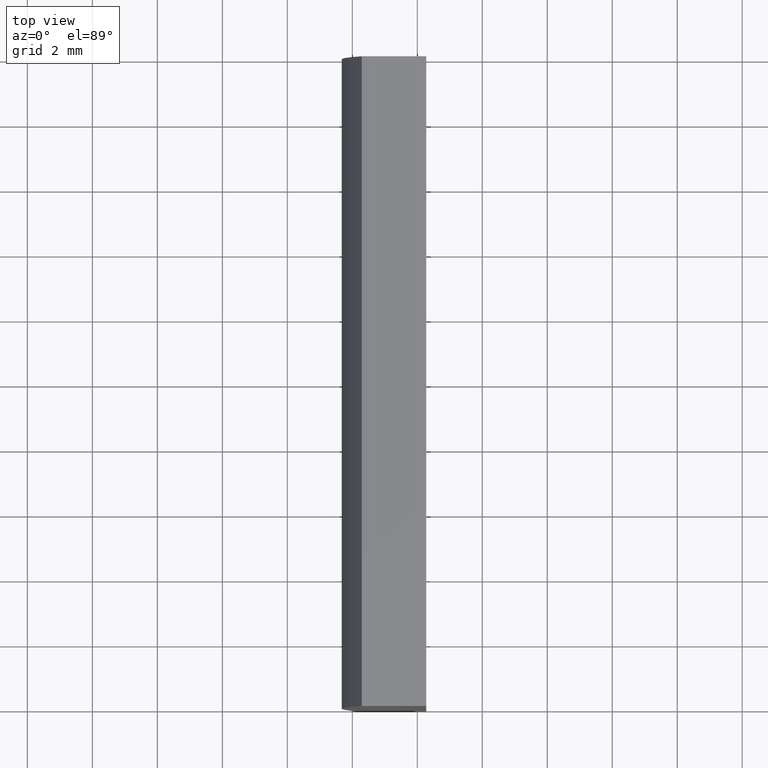
[diagram: clean part render]
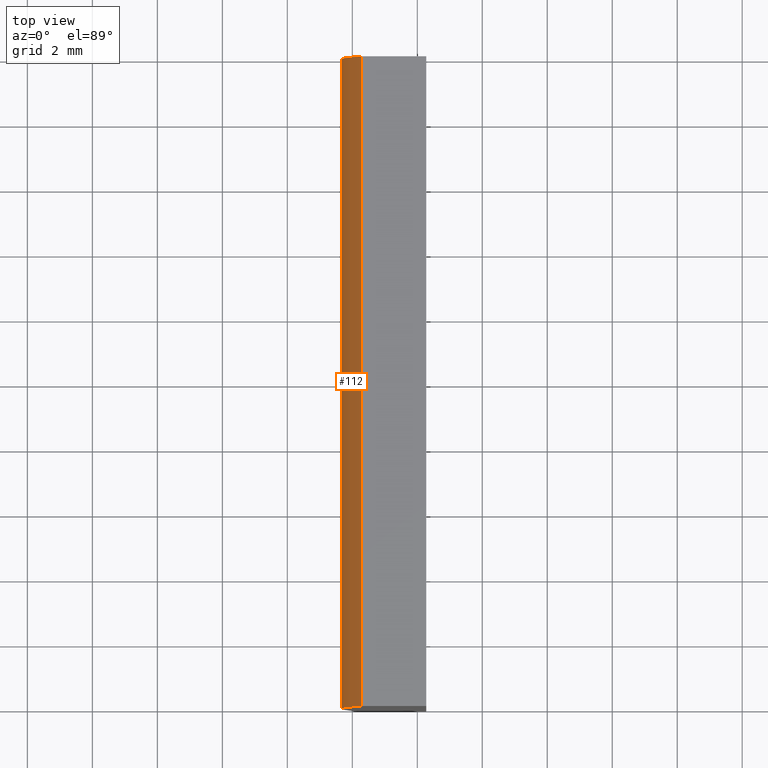
[diagram: same view with one face highlighted and labeled with its STEP entity id]
A machine part, top view. The second image highlights one B-rep face of the part: STEP entity #112.
In plain terms, the highlighted cylindrical surface (partial cylindrical patch) has radius 20.68 mm, axis along (-0, -1, -0).
Its self-contained STEP definition (entity closure, byte-faithful):
#10 = DIRECTION ( 'NONE',  ( 0.0000000000000000000, 1.000000000000000000, 0.0000000000000000000 ) ) ;
#13 = DIRECTION ( 'NONE',  ( -0.0000000000000000000, -1.000000000000000000, -0.0000000000000000000 ) ) ;
#14 = ORIENTED_EDGE ( 'NONE', *, *, #152, .F. ) ;
#15 = AXIS2_PLACEMENT_3D ( 'NONE', #124, #10, #30 ) ;
#19 = VECTOR ( 'NONE', #204, 1000.000000000000000 ) ;
#30 = DIRECTION ( 'NONE',  ( 0.0000000000000000000, 0.0000000000000000000, 1.000000000000000000 ) ) ;
#32 = VERTEX_POINT ( 'NONE', #183 ) ;
#49 = VERTEX_POINT ( 'NONE', #148 ) ;
#50 = CARTESIAN_POINT ( 'NONE',  ( -15.71124527637792300, 20.00000000000000000, 5.000000000000000000 ) ) ;
#60 = CARTESIAN_POINT ( 'NONE',  ( 4.355204334851265500, 0.0000000000000000000, 4.286263797015675000E-017 ) ) ;
#67 = LINE ( 'NONE', #127, #19 ) ;
#69 = DIRECTION ( 'NONE',  ( 0.0000000000000000000, 0.0000000000000000000, -1.000000000000000000 ) ) ;
#70 = CARTESIAN_POINT ( 'NONE',  ( -15.71124527637792000, 20.00000000000000000, -5.000000000000000000 ) ) ;
#73 = CIRCLE ( 'NONE', #116, 20.68000000000000000 ) ;
#79 = CYLINDRICAL_SURFACE ( 'NONE', #104, 20.68000000000000000 ) ;
#100 = DIRECTION ( 'NONE',  ( 0.0000000000000000000, 0.0000000000000000000, 1.000000000000000000 ) ) ;
#101 = CIRCLE ( 'NONE', #15, 20.68000000000000000 ) ;
#104 = AXIS2_PLACEMENT_3D ( 'NONE', #163, #113, #69 ) ;
#111 = EDGE_CURVE ( 'NONE', #186, #49, #67, .T. ) ;
#112 = ADVANCED_FACE ( 'NONE', ( #185 ), #79, .T. ) ;
#113 = DIRECTION ( 'NONE',  ( -0.0000000000000000000, -1.000000000000000000, -0.0000000000000000000 ) ) ;
#114 = VERTEX_POINT ( 'NONE', #195 ) ;
#115 = EDGE_CURVE ( 'NONE', #114, #32, #200, .T. ) ;
#116 = AXIS2_PLACEMENT_3D ( 'NONE', #60, #165, #100 ) ;
#124 = CARTESIAN_POINT ( 'NONE',  ( 4.355204334851265500, 20.00000000000000000, 4.286263797015675000E-017 ) ) ;
#127 = CARTESIAN_POINT ( 'NONE',  ( -15.71124527637792000, 20.00000000000000000, -5.000000000000000000 ) ) ;
#132 = ORIENTED_EDGE ( 'NONE', *, *, #141, .T. ) ;
#141 = EDGE_CURVE ( 'NONE', #49, #32, #73, .T. ) ;
#148 = CARTESIAN_POINT ( 'NONE',  ( -15.71124527637792000, 0.0000000000000000000, -5.000000000000000000 ) ) ;
#150 = VECTOR ( 'NONE', #13, 1000.000000000000000 ) ;
#152 = EDGE_CURVE ( 'NONE', #186, #114, #101, .T. ) ;
#154 = EDGE_LOOP ( 'NONE', ( #132, #160, #14, #192 ) ) ;
#160 = ORIENTED_EDGE ( 'NONE', *, *, #115, .F. ) ;
#163 = CARTESIAN_POINT ( 'NONE',  ( 4.355204334851265500, 20.00000000000000000, 4.286263797015675000E-017 ) ) ;
#165 = DIRECTION ( 'NONE',  ( 0.0000000000000000000, 1.000000000000000000, 0.0000000000000000000 ) ) ;
#183 = CARTESIAN_POINT ( 'NONE',  ( -15.71124527637792300, 0.0000000000000000000, 5.000000000000000000 ) ) ;
#185 = FACE_OUTER_BOUND ( 'NONE', #154, .T. ) ;
#186 = VERTEX_POINT ( 'NONE', #70 ) ;
#192 = ORIENTED_EDGE ( 'NONE', *, *, #111, .T. ) ;
#195 = CARTESIAN_POINT ( 'NONE',  ( -15.71124527637792300, 20.00000000000000000, 5.000000000000000000 ) ) ;
#200 = LINE ( 'NONE', #50, #150 ) ;
#204 = DIRECTION ( 'NONE',  ( -0.0000000000000000000, -1.000000000000000000, -0.0000000000000000000 ) ) ;